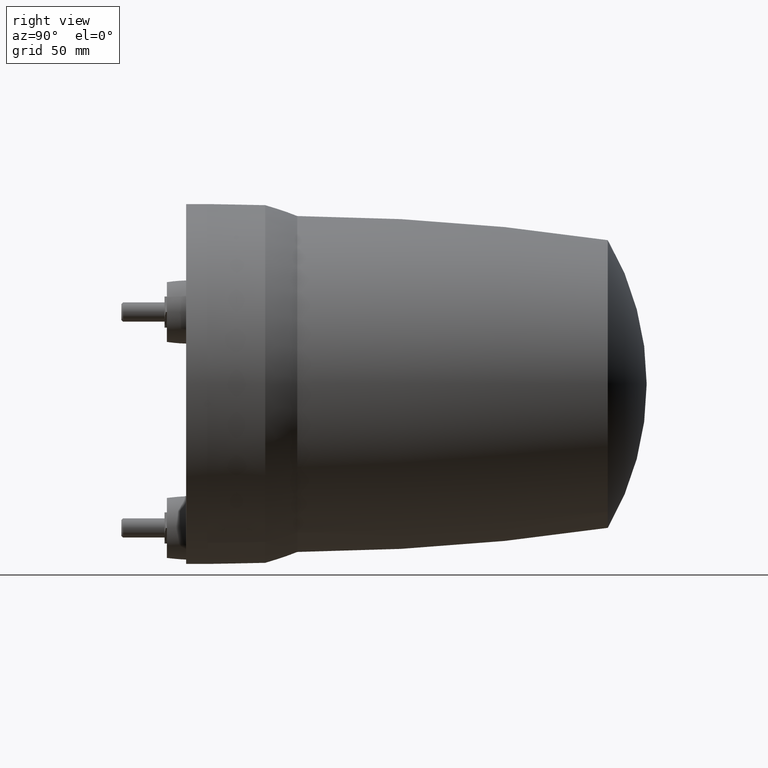
[diagram: clean part render]
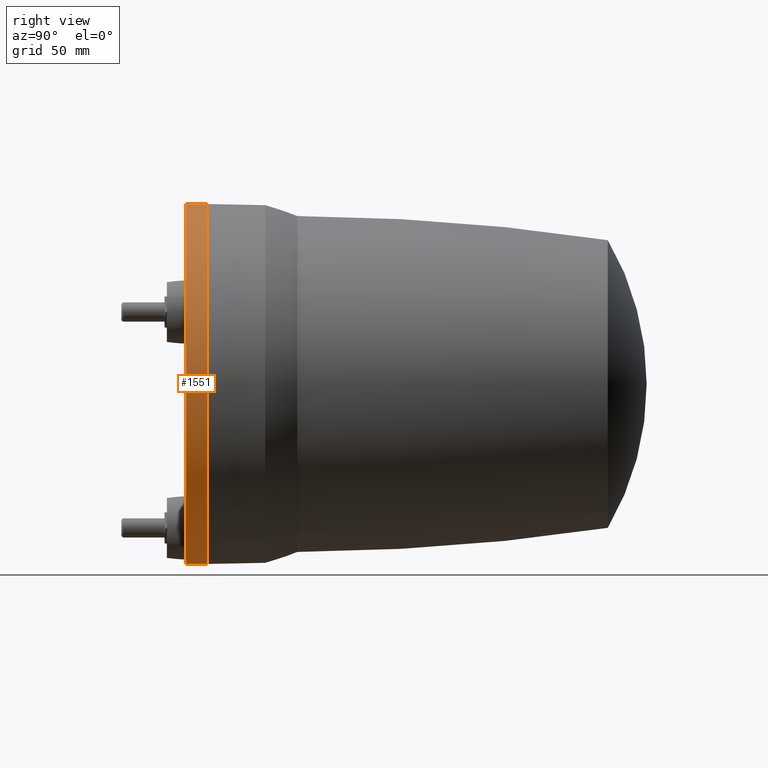
[diagram: same view with one face highlighted and labeled with its STEP entity id]
A machine part, right view. The second image highlights one B-rep face of the part: STEP entity #1551.
In plain terms, the highlighted cylindrical surface (partial cylindrical patch) has radius 75 mm, axis along (0, -1, 0).
Its self-contained STEP definition (entity closure, byte-faithful):
#296 = CARTESIAN_POINT ( 'NONE',  ( -5.237222008264703315E-13, 18.00000000000000000, 75.00000000000000000 ) ) ;
#426 = CARTESIAN_POINT ( 'NONE',  ( 0.000000000000000000, 18.00000000000000000, 0.000000000000000000 ) ) ;
#434 = CARTESIAN_POINT ( 'NONE',  ( -5.237222008264703315E-13, 9.000000000000000000, 75.00000000000000000 ) ) ;
#449 = EDGE_CURVE ( 'NONE', #2312, #3482, #628, .T. ) ;
#486 = CARTESIAN_POINT ( 'NONE',  ( 0.000000000000000000, 18.32999999999999829, 0.000000000000000000 ) ) ;
#522 = CARTESIAN_POINT ( 'NONE',  ( 5.145373498328652206E-13, 9.000000000000000000, -75.00000000000000000 ) ) ;
#576 = DIRECTION ( 'NONE',  ( 6.982962677686271444E-15, 0.000000000000000000, -1.000000000000000000 ) ) ;
#628 = CIRCLE ( 'NONE', #933, 75.00000000000000000 ) ;
#751 = DIRECTION ( 'NONE',  ( 0.000000000000000000, 1.000000000000000000, 0.000000000000000000 ) ) ;
#868 = CARTESIAN_POINT ( 'NONE',  ( 0.000000000000000000, 18.00000000000000000, 0.000000000000000000 ) ) ;
#898 = CIRCLE ( 'NONE', #978, 75.00000000000000000 ) ;
#917 = DIRECTION ( 'NONE',  ( 0.000000000000000000, -1.000000000000000000, 0.000000000000000000 ) ) ;
#933 = AXIS2_PLACEMENT_3D ( 'NONE', #868, #2395, #576 ) ;
#978 = AXIS2_PLACEMENT_3D ( 'NONE', #1917, #751, #1895 ) ;
#1086 = DIRECTION ( 'NONE',  ( 0.000000000000000000, 1.000000000000000000, 0.000000000000000000 ) ) ;
#1105 = CIRCLE ( 'NONE', #4126, 75.00000000000000000 ) ;
#1320 = VERTEX_POINT ( 'NONE', #434 ) ;
#1384 = LINE ( 'NONE', #2415, #1451 ) ;
#1451 = VECTOR ( 'NONE', #1772, 1000.000000000000000 ) ;
#1551 = ADVANCED_FACE ( 'NONE', ( #2677 ), #4190, .T. ) ;
#1726 = EDGE_CURVE ( 'NONE', #3482, #3207, #1105, .T. ) ;
#1772 = DIRECTION ( 'NONE',  ( 0.000000000000000000, -1.000000000000000000, 0.000000000000000000 ) ) ;
#1895 = DIRECTION ( 'NONE',  ( -6.982962677686271444E-15, 0.000000000000000000, 1.000000000000000000 ) ) ;
#1917 = CARTESIAN_POINT ( 'NONE',  ( 0.000000000000000000, 9.000000000000000000, 0.000000000000000000 ) ) ;
#1977 = ORIENTED_EDGE ( 'NONE', *, *, #2827, .F. ) ;
#2165 = CARTESIAN_POINT ( 'NONE',  ( 35.22756884437680469, 18.00000000000000000, -66.21192032643891423 ) ) ;
#2312 = VERTEX_POINT ( 'NONE', #296 ) ;
#2395 = DIRECTION ( 'NONE',  ( 0.000000000000000000, 1.000000000000000000, 0.000000000000000000 ) ) ;
#2397 = DIRECTION ( 'NONE',  ( -6.982962677686271444E-15, 0.000000000000000000, 1.000000000000000000 ) ) ;
#2415 = CARTESIAN_POINT ( 'NONE',  ( 5.145373498328652206E-13, 18.32999999999999829, -75.00000000000000000 ) ) ;
#2493 = AXIS2_PLACEMENT_3D ( 'NONE', #486, #917, #2397 ) ;
#2567 = DIRECTION ( 'NONE',  ( 6.982962677686271444E-15, 0.000000000000000000, -1.000000000000000000 ) ) ;
#2615 = EDGE_CURVE ( 'NONE', #1320, #3155, #898, .T. ) ;
#2665 = CARTESIAN_POINT ( 'NONE',  ( 5.145373498328652206E-13, 18.00000000000000000, -75.00000000000000000 ) ) ;
#2677 = FACE_OUTER_BOUND ( 'NONE', #4248, .T. ) ;
#2738 = ORIENTED_EDGE ( 'NONE', *, *, #3473, .T. ) ;
#2758 = ORIENTED_EDGE ( 'NONE', *, *, #449, .F. ) ;
#2827 = EDGE_CURVE ( 'NONE', #3207, #3155, #1384, .T. ) ;
#3155 = VERTEX_POINT ( 'NONE', #522 ) ;
#3207 = VERTEX_POINT ( 'NONE', #2665 ) ;
#3228 = CARTESIAN_POINT ( 'NONE',  ( -5.237222008264703315E-13, 18.32999999999999829, 75.00000000000000000 ) ) ;
#3279 = LINE ( 'NONE', #3228, #3608 ) ;
#3473 = EDGE_CURVE ( 'NONE', #2312, #1320, #3279, .T. ) ;
#3482 = VERTEX_POINT ( 'NONE', #2165 ) ;
#3608 = VECTOR ( 'NONE', #4028, 1000.000000000000000 ) ;
#4028 = DIRECTION ( 'NONE',  ( 0.000000000000000000, -1.000000000000000000, 0.000000000000000000 ) ) ;
#4115 = ORIENTED_EDGE ( 'NONE', *, *, #1726, .F. ) ;
#4126 = AXIS2_PLACEMENT_3D ( 'NONE', #426, #1086, #2567 ) ;
#4190 = CYLINDRICAL_SURFACE ( 'NONE', #2493, 75.00000000000000000 ) ;
#4248 = EDGE_LOOP ( 'NONE', ( #1977, #4115, #2758, #2738, #4461 ) ) ;
#4461 = ORIENTED_EDGE ( 'NONE', *, *, #2615, .T. ) ;